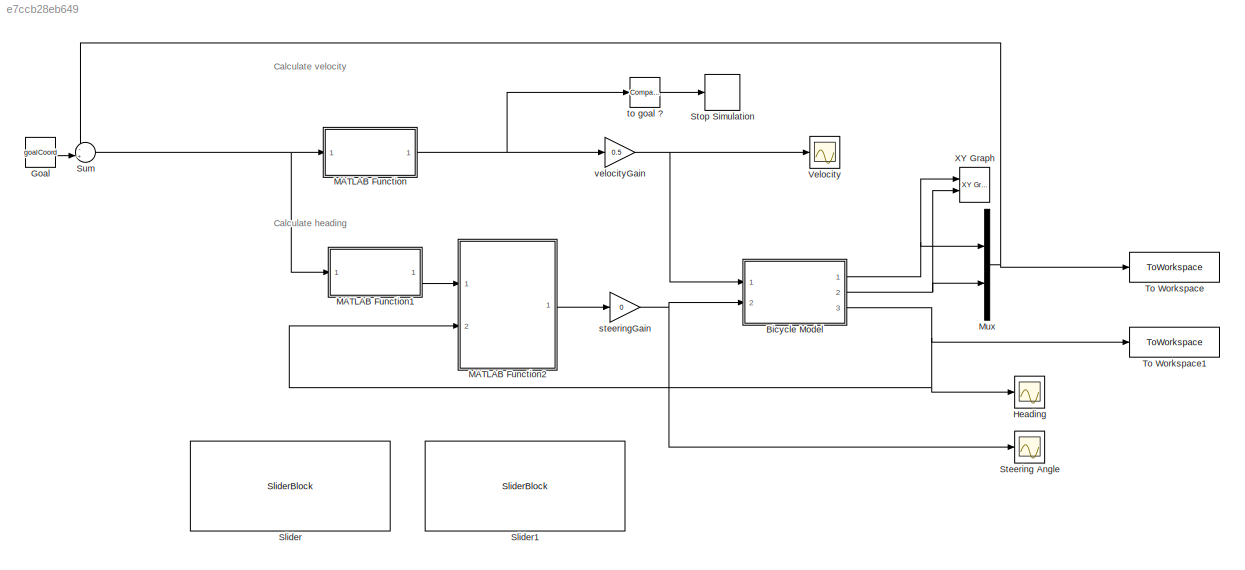
MODEL slx_e7ccb28eb649
KIND model
CONFIG AbsTol = auto
CONFIG EnableMultiTasking = off
CONFIG FixedStep = auto
CONFIG MaxStep = auto
CONFIG MinStep = auto
CONFIG RelTol = 1e-3
CONFIG SampleTimeConstraint = Unconstrained
CONFIG SolverName = VariableStepAuto
CONFIG StartTime = 0.0
CONFIG StopTime = 30
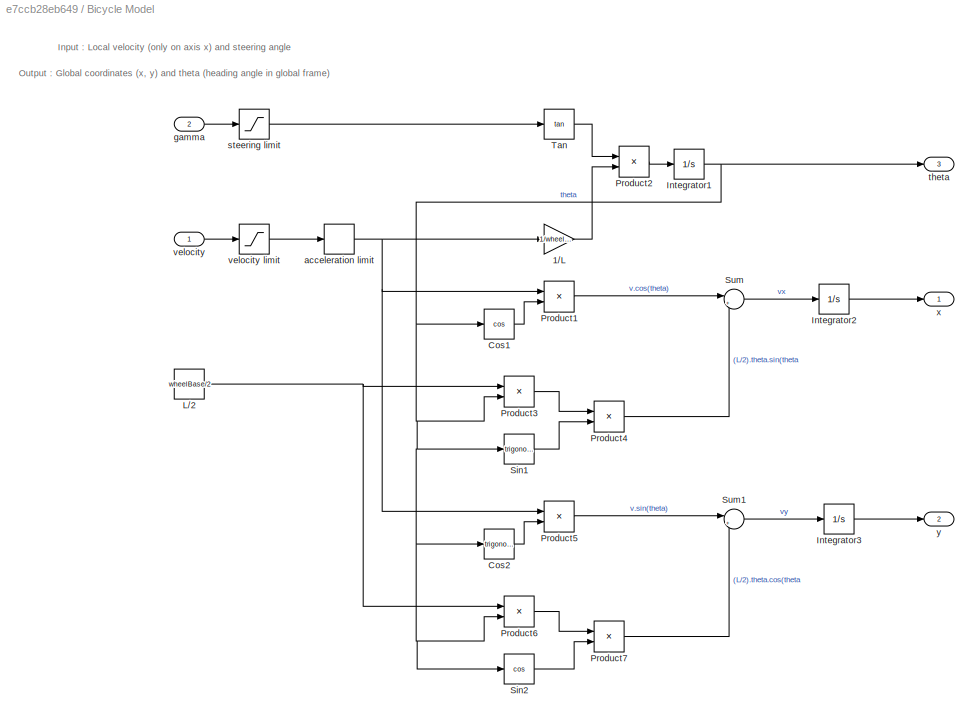
BLOCK [SubSystem] Bicycle Model
  Ports = [2, 3]
  RequestExecContextInheritance = off
BLOCK [Gain] Bicycle Model/1//L
  Gain = 1/wheelBase
BLOCK [Trigonometry] Bicycle Model/Cos1
  Operator = cos
  Ports = [1, 1]
BLOCK [Trigonometry] Bicycle Model/Cos2
  Ports = [1, 1]
BLOCK [Integrator] Bicycle Model/Integrator1
  InitialCondition = initCoord(3)
  Ports = [1, 1]
BLOCK [Integrator] Bicycle Model/Integrator2
  InitialCondition = initCoord(1)
  Ports = [1, 1]
BLOCK [Integrator] Bicycle Model/Integrator3
  InitialCondition = initCoord(2)
  Ports = [1, 1]
BLOCK [Constant] Bicycle Model/L//2
  Value = wheelBase/2
BLOCK [Product] Bicycle Model/Product1
  Ports = [2, 1]
BLOCK [Product] Bicycle Model/Product2
  Ports = [2, 1]
BLOCK [Product] Bicycle Model/Product3
  Ports = [2, 1]
BLOCK [Product] Bicycle Model/Product4
  Ports = [2, 1]
BLOCK [Product] Bicycle Model/Product5
  Ports = [2, 1]
BLOCK [Product] Bicycle Model/Product6
  Ports = [2, 1]
BLOCK [Product] Bicycle Model/Product7
  Ports = [2, 1]
BLOCK [Trigonometry] Bicycle Model/Sin1
  Ports = [1, 1]
BLOCK [Trigonometry] Bicycle Model/Sin2
  Operator = cos
  Ports = [1, 1]
BLOCK [Sum] Bicycle Model/Sum
  Inputs = |+-
  Ports = [2, 1]
BLOCK [Sum] Bicycle Model/Sum1
  Inputs = |++
  Ports = [2, 1]
BLOCK [Trigonometry] Bicycle Model/Tan
  Operator = tan
  Ports = [1, 1]
BLOCK [RateLimiter] Bicycle Model/acceleration limit
  FallingSlewLimit = -accelLim
  RisingSlewLimit = accelLim
  SampleTimeMode = inherited
BLOCK [Inport] Bicycle Model/gamma
  Port = 2
BLOCK [Saturate] Bicycle Model/steering limit
  LowerLimit = -steerLim
  UpperLimit = steerLim
  ZeroCross = off
BLOCK [Outport] Bicycle Model/theta
  Port = 3
BLOCK [Inport] Bicycle Model/velocity
BLOCK [Saturate] Bicycle Model/velocity limit
  LowerLimit = -speedLim
  UpperLimit = speedLim
BLOCK [Outport] Bicycle Model/x
BLOCK [Outport] Bicycle Model/y
  Port = 2
BLOCK [Constant] Goal
  Value = goalCoord
BLOCK [Scope] Heading
  Floating = off
  NumInputPorts = 1
  Ports = [1]
  ScopeSpecificationString = Simulink.scopes.TimeScopeBlockCfg('CurrentConfiguration', extmgr.ConfigurationSet(extmgr.Configuration('Core','General UI',true),extmgr.Configuration('Core','Source UI',true),extmgr.Configuration('Sources','WiredSimulink',true,'DataLoggingVariableName','ScopeData1'),extmgr.Configuration('Visuals','Time Domain',true,'SerializedDisplays',{struct('MinYLimReal','-1.67898','MaxYLimReal','3.17965','YLab...<+1470ch>
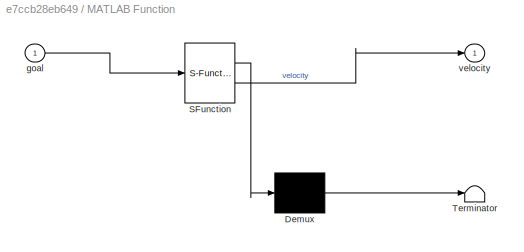
BLOCK [SubSystem] MATLAB Function
  ErrorFcn = Stateflow.Translate.translate
  PermitHierarchicalResolution = ExplicitOnly
  Ports = [1, 1]
  RequestExecContextInheritance = off
  SFBlockType = MATLAB Function
  TreatAsAtomicUnit = on
BLOCK [Demux] MATLAB Function/ Demux 
  Outputs = 1
  Ports = [1, 1]
BLOCK [S-Function] MATLAB Function/ SFunction 
  EnableBusSupport = on
  FunctionName = sf_sfun
  PortCounts = [1 2]
  Ports = [1, 2]
  SFcnIsStateOwnerBlock = off
  SFunctionDeploymentMode = off
  Tag = Stateflow S-Function 2
BLOCK [Terminator] MATLAB Function/ Terminator 
BLOCK [Inport] MATLAB Function/goal
BLOCK [Outport] MATLAB Function/velocity
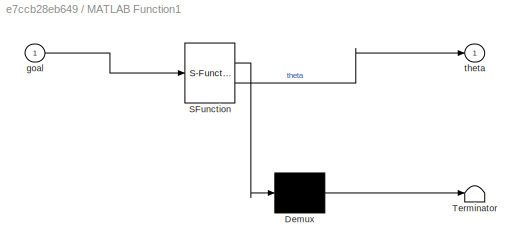
BLOCK [SubSystem] MATLAB Function1
  ErrorFcn = Stateflow.Translate.translate
  PermitHierarchicalResolution = ExplicitOnly
  Ports = [1, 1]
  RequestExecContextInheritance = off
  SFBlockType = MATLAB Function
  TreatAsAtomicUnit = on
BLOCK [Demux] MATLAB Function1/ Demux 
  Outputs = 1
  Ports = [1, 1]
BLOCK [S-Function] MATLAB Function1/ SFunction 
  EnableBusSupport = on
  FunctionName = sf_sfun
  PortCounts = [1 2]
  Ports = [1, 2]
  SFcnIsStateOwnerBlock = off
  SFunctionDeploymentMode = off
  Tag = Stateflow S-Function 1
BLOCK [Terminator] MATLAB Function1/ Terminator 
BLOCK [Inport] MATLAB Function1/goal
BLOCK [Outport] MATLAB Function1/theta
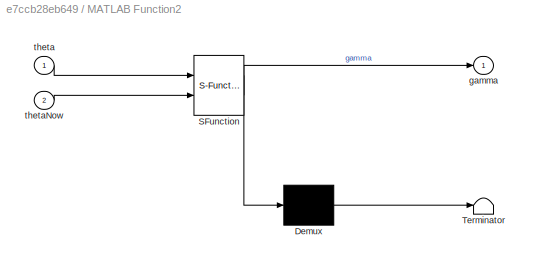
BLOCK [SubSystem] MATLAB Function2
  ErrorFcn = Stateflow.Translate.translate
  PermitHierarchicalResolution = ExplicitOnly
  Ports = [2, 1]
  RequestExecContextInheritance = off
  SFBlockType = MATLAB Function
  TreatAsAtomicUnit = on
BLOCK [Demux] MATLAB Function2/ Demux 
  Outputs = 1
  Ports = [1, 1]
BLOCK [S-Function] MATLAB Function2/ SFunction 
  EnableBusSupport = on
  FunctionName = sf_sfun
  PortCounts = [2 2]
  Ports = [2, 2]
  SFcnIsStateOwnerBlock = off
  SFunctionDeploymentMode = off
  Tag = Stateflow S-Function 3
BLOCK [Terminator] MATLAB Function2/ Terminator 
BLOCK [Outport] MATLAB Function2/gamma
BLOCK [Inport] MATLAB Function2/theta
BLOCK [Inport] MATLAB Function2/thetaNow
  Port = 2
BLOCK [Mux] Mux
  DisplayOption = bar
  Inputs = 2
  Ports = [2, 1]
BLOCK [SliderBlock] Slider
  ScaleMax = 2
BLOCK [SliderBlock] Slider1
  ScaleMax = 5
BLOCK [Scope] Steering Angle
  Floating = off
  NumInputPorts = 1
  Ports = [1]
  ScopeSpecificationString = Simulink.scopes.TimeScopeBlockCfg('CurrentConfiguration', extmgr.ConfigurationSet(extmgr.Configuration('Core','General UI',true),extmgr.Configuration('Core','Source UI',true),extmgr.Configuration('Sources','WiredSimulink',true,'DataLoggingVariableName','ScopeData2'),extmgr.Configuration('Visuals','Time Domain',true,'SerializedDisplays',{struct('MinYLimReal','-0.78909','MaxYLimReal','7.06899','YLab...<+1424ch>
BLOCK [Stop] Stop Simulation
BLOCK [Sum] Sum
  Inputs = -+|
  NameLocation = top
  Ports = [2, 1]
BLOCK [ToWorkspace] To Workspace
  FixptAsFi = on
  MaxDataPoints = inf
  Ports = [1]
  SampleTime = -1
  SaveFormat = Timeseries
  VariableName = position
BLOCK [ToWorkspace] To Workspace1
  FixptAsFi = on
  MaxDataPoints = inf
  Ports = [1]
  SampleTime = -1
  SaveFormat = Timeseries
  VariableName = angle
BLOCK [Scope] Velocity
  Floating = off
  NumInputPorts = 1
  Ports = [1]
  ScopeSpecificationString = Simulink.scopes.TimeScopeBlockCfg('CurrentConfiguration', extmgr.ConfigurationSet(extmgr.Configuration('Core','General UI',true),extmgr.Configuration('Core','Source UI',true),extmgr.Configuration('Sources','WiredSimulink',true),extmgr.Configuration('Visuals','Time Domain',true,'SerializedDisplays',{struct('MinYLimReal','-0.18188','MaxYLimReal','1.68687','YLabelReal','','MinYLimMag','0.00000','MaxY...<+1387ch>
BLOCK [Reference] XY Graph  REF=simulink/Sinks/XY Graph
  Ports = [2]
  SourceBlock = simulink/Sinks/XY Graph
  SourceProductBaseCode = SL
  SourceType = XY scope.
BLOCK [Gain] steeringGain
  Gain = 0
BLOCK [Reference] to goal ?  REF=simulink/Logic and Bit
Operations/Compare
To Constant
  Ports = [1, 1]
  SourceBlock = simulink/Logic and Bit\nOperations/Compare\nTo Constant
  SourceProductBaseCode = SL
  SourceType = Compare To Constant
BLOCK [Gain] velocityGain
  Gain = 0.5
ANNOTATION (root): Calculate heading
ANNOTATION (root): Calculate velocity
ANNOTATION Bicycle Model: Input : Local velocity (only on axis x) and steering angle
ANNOTATION Bicycle Model: Output : Global coordinates (x, y) and theta (heading angle in global frame)
LINE Bicycle Model/1//L:1 -> Bicycle Model/Product2:2
LINE Bicycle Model/Cos1:1 -> Bicycle Model/Product1:2
LINE Bicycle Model/Cos2:1 -> Bicycle Model/Product5:2
NET Bicycle Model/Integrator1:1 -> Bicycle Model/Cos1:1, Bicycle Model/Cos2:1, Bicycle Model/Product3:2, Bicycle Model/Product6:2, Bicycle Model/Sin1:1, Bicycle Model/Sin2:1, Bicycle Model/theta:1
LINE Bicycle Model/Integrator2:1 -> Bicycle Model/x:1
LINE Bicycle Model/Integrator3:1 -> Bicycle Model/y:1
NET Bicycle Model/L//2:1 -> Bicycle Model/Product3:1, Bicycle Model/Product6:1
LINE Bicycle Model/Product1:1 -> Bicycle Model/Sum:1
LINE Bicycle Model/Product2:1 -> Bicycle Model/Integrator1:1
LINE Bicycle Model/Product3:1 -> Bicycle Model/Product4:1
LINE Bicycle Model/Product4:1 -> Bicycle Model/Sum:2
LINE Bicycle Model/Product5:1 -> Bicycle Model/Sum1:1
LINE Bicycle Model/Product6:1 -> Bicycle Model/Product7:1
LINE Bicycle Model/Product7:1 -> Bicycle Model/Sum1:2
LINE Bicycle Model/Sin1:1 -> Bicycle Model/Product4:2
LINE Bicycle Model/Sin2:1 -> Bicycle Model/Product7:2
LINE Bicycle Model/Sum1:1 -> Bicycle Model/Integrator3:1
LINE Bicycle Model/Sum:1 -> Bicycle Model/Integrator2:1
LINE Bicycle Model/Tan:1 -> Bicycle Model/Product2:1
NET Bicycle Model/acceleration limit:1 -> Bicycle Model/1//L:1, Bicycle Model/Product1:1, Bicycle Model/Product5:1
LINE Bicycle Model/gamma:1 -> Bicycle Model/steering limit:1
LINE Bicycle Model/steering limit:1 -> Bicycle Model/Tan:1
LINE Bicycle Model/velocity limit:1 -> Bicycle Model/acceleration limit:1
LINE Bicycle Model/velocity:1 -> Bicycle Model/velocity limit:1
NET Bicycle Model:1 -> Mux:1, XY Graph:1
NET Bicycle Model:2 -> Mux:2, XY Graph:2
NET Bicycle Model:3 -> Heading:1, MATLAB Function2:2, To Workspace1:1
LINE Goal:1 -> Sum:2
LINE MATLAB Function1:1 -> MATLAB Function2:1
LINE MATLAB Function2:1 -> steeringGain:1
NET MATLAB Function:1 -> to goal ?:1, velocityGain:1
NET Mux:1 -> Sum:1, To Workspace:1
NET Sum:1 -> MATLAB Function1:1, MATLAB Function:1
NET steeringGain:1 -> Bicycle Model:2, Steering Angle:1
LINE to goal ?:1 -> Stop Simulation:1
NET velocityGain:1 -> Bicycle Model:1, Velocity:1
note: NET lines group one-source signal fan-out (src -> all destinations, sorted); 1:1 wires keep LINE
CHART MATLAB Function states=1 transitions=1
  STATE_LABEL 'eML_blk_kernel()'
  STATE_LABEL 'SCRIPT:\nfunction velocity = speedGoal(goal)\n\nvelocity = sqrt(goal(1)^2+goal(2)^2);\n'
CHART MATLAB Function2 states=1 transitions=1
  STATE_LABEL 'eML_blk_kernel()'
  STATE_LABEL 'SCRIPT:\nfunction gamma = gammaGoal(theta, thetaNow)\n\ngamma = angdiff(thetaNow, theta);\n'
CHART MATLAB Function1 states=1 transitions=1
  STATE_LABEL 'eML_blk_kernel()'
  STATE_LABEL 'SCRIPT:\nfunction theta = goalAngle(goal)\n\ntheta = atan2(goal(2),goal(1));\n'
CHART  states=0 transitions=0
CHART  states=0 transitions=0
CHART  states=0 transitions=0
